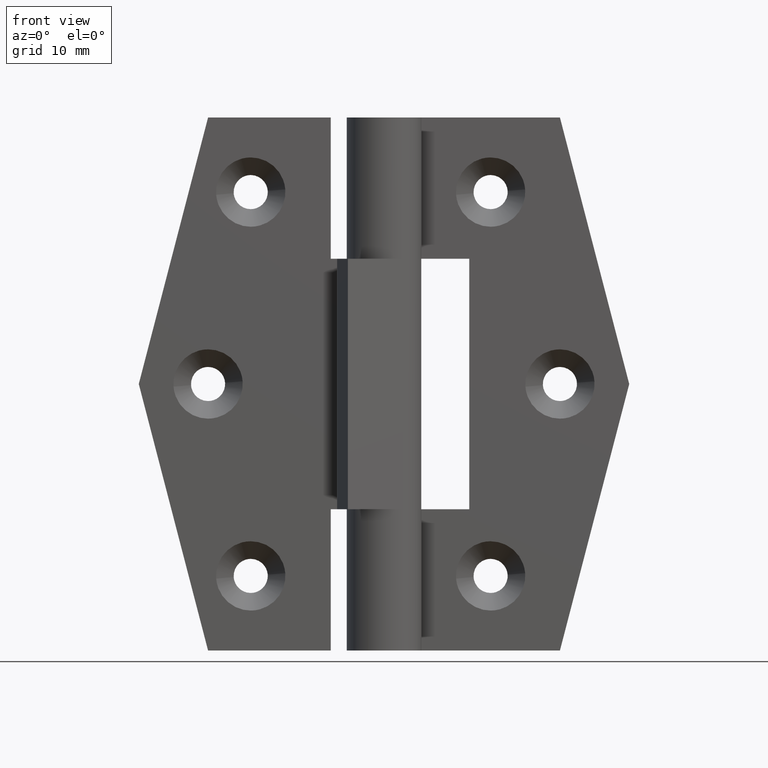
[diagram: clean part render]
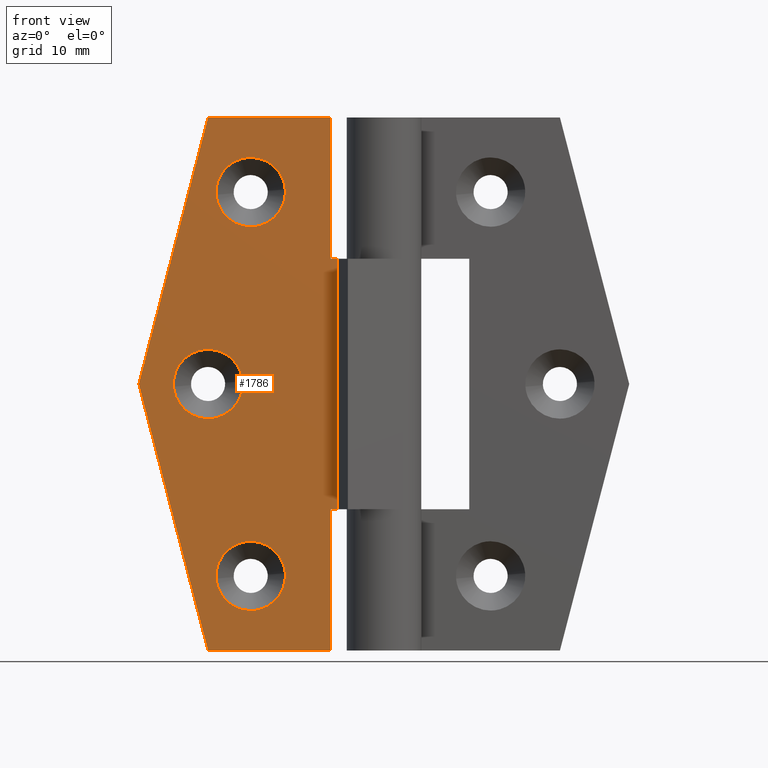
[diagram: same view with one face highlighted and labeled with its STEP entity id]
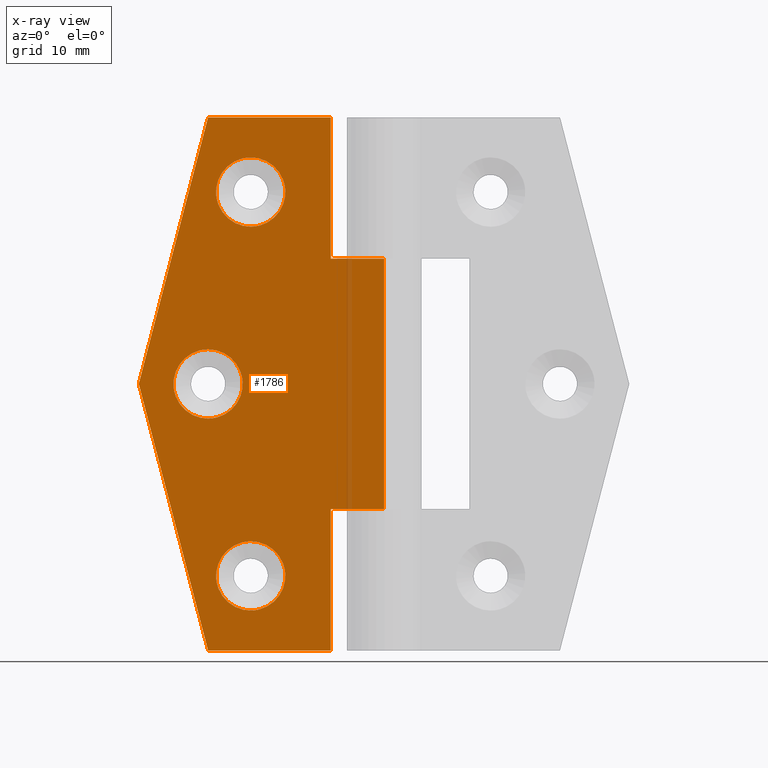
[diagram: x-ray of the same camera — body ghosted, the highlighted face saturated]
A machine part, front view. The second image highlights one B-rep face of the part: STEP entity #1786.
The next image is the same camera in x-ray: the body ghosted, the highlighted face saturated — about 2% of this face is hidden behind the body in this view.
In plain terms, the highlighted face is a freeform B-spline surface patch.
Its self-contained STEP definition (entity closure, byte-faithful):
#515=CARTESIAN_POINT('',(-13.260018665359871,1.499999999981075,25.254992061261849));
#516=VERTEX_POINT('',#515);
#522=CARTESIAN_POINT('',(-16.500000000000000,1.500000000000000,28.250000000000000));
#523=VERTEX_POINT('',#522);
#524=CARTESIAN_POINT('',(-16.500000000000000,1.500000000000000,28.250000000000000));
#525=CARTESIAN_POINT('',(-13.495730902380316,1.500000000000001,28.250000000000004));
#526=CARTESIAN_POINT('',(-13.260018665359867,1.499999999981075,25.254992061261849));
#534=(BOUNDED_CURVE()B_SPLINE_CURVE(2,(#524,#525,#526),.UNSPECIFIED.,.F.,.U.)B_SPLINE_CURVE_WITH_KNOTS((3,3),(0.0,0.236331300617437),.UNSPECIFIED.)CURVE()GEOMETRIC_REPRESENTATION_ITEM()RATIONAL_B_SPLINE_CURVE((1.0,0.723120658623156,0.969723356139824))REPRESENTATION_ITEM(''));
#535=EDGE_CURVE('',#523,#516,#534,.T.);
#537=CARTESIAN_POINT('',(-19.739981334640131,1.499999999981074,24.745007938738159));
#538=VERTEX_POINT('',#537);
#539=CARTESIAN_POINT('',(-19.739981334640134,1.499999999981074,24.745007938738151));
#540=CARTESIAN_POINT('',(-19.750000000000000,1.500000000000000,24.872307152079536));
#541=CARTESIAN_POINT('',(-19.750000000000000,1.500000000000000,25.0));
#542=CARTESIAN_POINT('',(-19.749999999999996,1.500000000000000,28.250000000000004));
#543=CARTESIAN_POINT('',(-16.500000000000000,1.500000000000000,28.250000000000000));
#551=(BOUNDED_CURVE()B_SPLINE_CURVE(2,(#539,#540,#541,#542,#543),.UNSPECIFIED.,.F.,.U.)B_SPLINE_CURVE_WITH_KNOTS((3,2,3),(0.736331300617438,0.750000000000000,1.0),.UNSPECIFIED.)CURVE()GEOMETRIC_REPRESENTATION_ITEM()RATIONAL_B_SPLINE_CURVE((0.969723356139824,0.983986122563391,1.0,0.707106781186547,1.0))REPRESENTATION_ITEM(''));
#552=EDGE_CURVE('',#538,#523,#551,.T.);
#589=CARTESIAN_POINT('',(-16.500000000000000,1.500000000000000,21.750000000000000));
#590=VERTEX_POINT('',#589);
#591=CARTESIAN_POINT('',(-16.500000000000000,1.500000000000000,21.750000000000000));
#592=CARTESIAN_POINT('',(-19.504269097619712,1.500000000000000,21.750000000000007));
#593=CARTESIAN_POINT('',(-19.739981334640131,1.499999999981074,24.745007938738155));
#601=(BOUNDED_CURVE()B_SPLINE_CURVE(2,(#591,#592,#593),.UNSPECIFIED.,.F.,.U.)B_SPLINE_CURVE_WITH_KNOTS((3,3),(0.500000000000000,0.736331300617438),.UNSPECIFIED.)CURVE()GEOMETRIC_REPRESENTATION_ITEM()RATIONAL_B_SPLINE_CURVE((1.0,0.723120658623155,0.969723356139826))REPRESENTATION_ITEM(''));
#602=EDGE_CURVE('',#590,#538,#601,.T.);
#604=CARTESIAN_POINT('',(-13.260018665359876,1.499999999981075,25.254992061261845));
#605=CARTESIAN_POINT('',(-13.250000000000007,1.500000000000000,25.127692847920457));
#606=CARTESIAN_POINT('',(-13.250000000000000,1.500000000000000,25.0));
#607=CARTESIAN_POINT('',(-13.250000000000004,1.500000000000000,21.750000000000004));
#608=CARTESIAN_POINT('',(-16.500000000000000,1.500000000000000,21.750000000000000));
#616=(BOUNDED_CURVE()B_SPLINE_CURVE(2,(#604,#605,#606,#607,#608),.UNSPECIFIED.,.F.,.U.)B_SPLINE_CURVE_WITH_KNOTS((3,2,3),(0.236331300617437,0.250000000000000,0.500000000000000),.UNSPECIFIED.)CURVE()GEOMETRIC_REPRESENTATION_ITEM()RATIONAL_B_SPLINE_CURVE((0.969723356139824,0.983986122563391,1.0,0.707106781186547,1.0))REPRESENTATION_ITEM(''));
#617=EDGE_CURVE('',#516,#590,#616,.T.);
#843=CARTESIAN_POINT('',(-9.260018665359869,1.499999999981075,43.254992061261852));
#844=VERTEX_POINT('',#843);
#850=CARTESIAN_POINT('',(-12.500000000000000,1.500000000000000,46.250000000000000));
#851=VERTEX_POINT('',#850);
#852=CARTESIAN_POINT('',(-12.500000000000000,1.500000000000000,46.250000000000000));
#853=CARTESIAN_POINT('',(-9.495730902380309,1.500000000000000,46.249999999999993));
#854=CARTESIAN_POINT('',(-9.260018665359869,1.499999999981075,43.254992061261845));
#862=(BOUNDED_CURVE()B_SPLINE_CURVE(2,(#852,#853,#854),.UNSPECIFIED.,.F.,.U.)B_SPLINE_CURVE_WITH_KNOTS((3,3),(0.0,0.236331300617438),.UNSPECIFIED.)CURVE()GEOMETRIC_REPRESENTATION_ITEM()RATIONAL_B_SPLINE_CURVE((1.0,0.723120658623156,0.969723356139825))REPRESENTATION_ITEM(''));
#863=EDGE_CURVE('',#851,#844,#862,.T.);
#865=CARTESIAN_POINT('',(-15.739981334640129,1.499999999981075,42.745007938738162));
#866=VERTEX_POINT('',#865);
#867=CARTESIAN_POINT('',(-15.739981334640126,1.499999999981075,42.745007938738148));
#868=CARTESIAN_POINT('',(-15.750000000000004,1.500000000000000,42.872307152079543));
#869=CARTESIAN_POINT('',(-15.750000000000000,1.500000000000000,43.0));
#870=CARTESIAN_POINT('',(-15.749999999999995,1.500000000000000,46.249999999999993));
#871=CARTESIAN_POINT('',(-12.500000000000000,1.500000000000000,46.250000000000000));
#879=(BOUNDED_CURVE()B_SPLINE_CURVE(2,(#867,#868,#869,#870,#871),.UNSPECIFIED.,.F.,.U.)B_SPLINE_CURVE_WITH_KNOTS((3,2,3),(0.736331300617438,0.750000000000000,1.0),.UNSPECIFIED.)CURVE()GEOMETRIC_REPRESENTATION_ITEM()RATIONAL_B_SPLINE_CURVE((0.969723356139825,0.983986122563392,1.0,0.707106781186547,1.0))REPRESENTATION_ITEM(''));
#880=EDGE_CURVE('',#866,#851,#879,.T.);
#917=CARTESIAN_POINT('',(-12.500000000000000,1.500000000000000,39.749999999999993));
#918=VERTEX_POINT('',#917);
#919=CARTESIAN_POINT('',(-12.500000000000000,1.500000000000000,39.749999999999993));
#920=CARTESIAN_POINT('',(-15.504269097619702,1.500000000000000,39.750000000000000));
#921=CARTESIAN_POINT('',(-15.739981334640126,1.499999999981075,42.745007938738155));
#929=(BOUNDED_CURVE()B_SPLINE_CURVE(2,(#919,#920,#921),.UNSPECIFIED.,.F.,.U.)B_SPLINE_CURVE_WITH_KNOTS((3,3),(0.500000000000000,0.736331300617438),.UNSPECIFIED.)CURVE()GEOMETRIC_REPRESENTATION_ITEM()RATIONAL_B_SPLINE_CURVE((1.0,0.723120658623155,0.969723356139826))REPRESENTATION_ITEM(''));
#930=EDGE_CURVE('',#918,#866,#929,.T.);
#932=CARTESIAN_POINT('',(-9.260018665359869,1.499999999981076,43.254992061261845));
#933=CARTESIAN_POINT('',(-9.250000000000002,1.500000000000000,43.127692847920464));
#934=CARTESIAN_POINT('',(-9.250000000000002,1.500000000000000,43.0));
#935=CARTESIAN_POINT('',(-9.250000000000002,1.500000000000000,39.750000000000000));
#936=CARTESIAN_POINT('',(-12.500000000000000,1.500000000000000,39.749999999999993));
#944=(BOUNDED_CURVE()B_SPLINE_CURVE(2,(#932,#933,#934,#935,#936),.UNSPECIFIED.,.F.,.U.)B_SPLINE_CURVE_WITH_KNOTS((3,2,3),(0.236331300617438,0.250000000000000,0.500000000000000),.UNSPECIFIED.)CURVE()GEOMETRIC_REPRESENTATION_ITEM()RATIONAL_B_SPLINE_CURVE((0.969723356139824,0.983986122563391,1.0,0.707106781186547,1.0))REPRESENTATION_ITEM(''));
#945=EDGE_CURVE('',#844,#918,#944,.T.);
#1171=CARTESIAN_POINT('',(-9.260018665359873,1.499999999981076,7.254992061261847));
#1172=VERTEX_POINT('',#1171);
#1178=CARTESIAN_POINT('',(-12.500000000000000,1.500000000000000,10.250000000000000));
#1179=VERTEX_POINT('',#1178);
#1180=CARTESIAN_POINT('',(-12.500000000000000,1.500000000000000,10.250000000000000));
#1181=CARTESIAN_POINT('',(-9.495730902380309,1.500000000000000,10.250000000000000));
#1182=CARTESIAN_POINT('',(-9.260018665359873,1.499999999981076,7.254992061261847));
#1190=(BOUNDED_CURVE()B_SPLINE_CURVE(2,(#1180,#1181,#1182),.UNSPECIFIED.,.F.,.U.)B_SPLINE_CURVE_WITH_KNOTS((3,3),(0.0,0.236331300617438),.UNSPECIFIED.)CURVE()GEOMETRIC_REPRESENTATION_ITEM()RATIONAL_B_SPLINE_CURVE((1.0,0.723120658623156,0.969723356139825))REPRESENTATION_ITEM(''));
#1191=EDGE_CURVE('',#1179,#1172,#1190,.T.);
#1193=CARTESIAN_POINT('',(-15.739981334640129,1.499999999981075,6.745007938738153));
#1194=VERTEX_POINT('',#1193);
#1195=CARTESIAN_POINT('',(-15.739981334640134,1.499999999981075,6.745007938738154));
#1196=CARTESIAN_POINT('',(-15.749999999999998,1.500000000000000,6.872307152079536));
#1197=CARTESIAN_POINT('',(-15.750000000000000,1.500000000000000,7.0));
#1198=CARTESIAN_POINT('',(-15.749999999999995,1.500000000000000,10.250000000000000));
#1199=CARTESIAN_POINT('',(-12.500000000000000,1.500000000000000,10.250000000000000));
#1207=(BOUNDED_CURVE()B_SPLINE_CURVE(2,(#1195,#1196,#1197,#1198,#1199),.UNSPECIFIED.,.F.,.U.)B_SPLINE_CURVE_WITH_KNOTS((3,2,3),(0.736331300617437,0.750000000000000,1.0),.UNSPECIFIED.)CURVE()GEOMETRIC_REPRESENTATION_ITEM()RATIONAL_B_SPLINE_CURVE((0.969723356139824,0.983986122563391,1.0,0.707106781186547,1.0))REPRESENTATION_ITEM(''));
#1208=EDGE_CURVE('',#1194,#1179,#1207,.T.);
#1245=CARTESIAN_POINT('',(-12.500000000000000,1.500000000000000,3.750000000000000));
#1246=VERTEX_POINT('',#1245);
#1247=CARTESIAN_POINT('',(-12.500000000000000,1.500000000000000,3.750000000000000));
#1248=CARTESIAN_POINT('',(-15.504269097619702,1.500000000000000,3.750000000000001));
#1249=CARTESIAN_POINT('',(-15.739981334640126,1.499999999981075,6.745007938738153));
#1257=(BOUNDED_CURVE()B_SPLINE_CURVE(2,(#1247,#1248,#1249),.UNSPECIFIED.,.F.,.U.)B_SPLINE_CURVE_WITH_KNOTS((3,3),(0.500000000000000,0.736331300617438),.UNSPECIFIED.)CURVE()GEOMETRIC_REPRESENTATION_ITEM()RATIONAL_B_SPLINE_CURVE((1.0,0.723120658623155,0.969723356139826))REPRESENTATION_ITEM(''));
#1258=EDGE_CURVE('',#1246,#1194,#1257,.T.);
#1260=CARTESIAN_POINT('',(-9.260018665359873,1.499999999981077,7.254992061261848));
#1261=CARTESIAN_POINT('',(-9.250000000000002,1.500000000000000,7.127692847920463));
#1262=CARTESIAN_POINT('',(-9.250000000000002,1.500000000000000,7.0));
#1263=CARTESIAN_POINT('',(-9.250000000000002,1.500000000000000,3.750000000000002));
#1264=CARTESIAN_POINT('',(-12.500000000000000,1.500000000000000,3.750000000000000));
#1272=(BOUNDED_CURVE()B_SPLINE_CURVE(2,(#1260,#1261,#1262,#1263,#1264),.UNSPECIFIED.,.F.,.U.)B_SPLINE_CURVE_WITH_KNOTS((3,2,3),(0.236331300617438,0.250000000000000,0.500000000000000),.UNSPECIFIED.)CURVE()GEOMETRIC_REPRESENTATION_ITEM()RATIONAL_B_SPLINE_CURVE((0.969723356139824,0.983986122563391,1.0,0.707106781186547,1.0))REPRESENTATION_ITEM(''));
#1273=EDGE_CURVE('',#1172,#1246,#1272,.T.);
#1284=CARTESIAN_POINT('',(-5.0,1.500000000000000,13.250000000000000));
#1285=VERTEX_POINT('',#1284);
#1338=CARTESIAN_POINT('',(9.184548E-017,1.500000000000000,13.250000000000000));
#1339=VERTEX_POINT('',#1338);
#1355=CARTESIAN_POINT('',(9.184548E-017,1.500000000000000,13.250000000000000));
#1356=CARTESIAN_POINT('',(-5.0,1.500000000000000,13.250000000000000));
#1357=QUASI_UNIFORM_CURVE('',1,(#1355,#1356),.UNSPECIFIED.,.F.,.U.);
#1358=EDGE_CURVE('',#1339,#1285,#1357,.T.);
#1368=CARTESIAN_POINT('',(-5.0,1.500000000000000,36.750000000000000));
#1369=VERTEX_POINT('',#1368);
#1377=CARTESIAN_POINT('',(9.184548E-017,1.500000000000000,36.750000000000000));
#1378=VERTEX_POINT('',#1377);
#1379=CARTESIAN_POINT('',(9.184548E-017,1.500000000000000,36.750000000000000));
#1380=CARTESIAN_POINT('',(-5.0,1.500000000000000,36.750000000000000));
#1381=QUASI_UNIFORM_CURVE('',1,(#1379,#1380),.UNSPECIFIED.,.F.,.U.);
#1382=EDGE_CURVE('',#1378,#1369,#1381,.T.);
#1472=CARTESIAN_POINT('',(9.184548E-017,1.500000000000000,36.750000000000000));
#1473=CARTESIAN_POINT('',(9.184548E-017,1.500000000000000,13.250000000000000));
#1474=QUASI_UNIFORM_CURVE('',1,(#1472,#1473),.UNSPECIFIED.,.F.,.U.);
#1475=EDGE_CURVE('',#1378,#1339,#1474,.T.);
#1571=CARTESIAN_POINT('',(-16.499996099997649,1.499999999999946,50.0));
#1572=VERTEX_POINT('',#1571);
#1578=CARTESIAN_POINT('',(-5.0,1.499999999999946,50.0));
#1579=VERTEX_POINT('',#1578);
#1580=CARTESIAN_POINT('',(-5.0,1.499999999999946,50.0));
#1581=CARTESIAN_POINT('',(-16.499996099997649,1.499999999999946,50.0));
#1582=QUASI_UNIFORM_CURVE('',1,(#1580,#1581),.UNSPECIFIED.,.F.,.U.);
#1583=EDGE_CURVE('',#1579,#1572,#1582,.T.);
#1598=CARTESIAN_POINT('',(-5.0,1.500000000000000,36.750000000000000));
#1599=CARTESIAN_POINT('',(-5.0,1.499999999999946,50.0));
#1600=QUASI_UNIFORM_CURVE('',1,(#1598,#1599),.UNSPECIFIED.,.F.,.U.);
#1601=EDGE_CURVE('',#1369,#1579,#1600,.T.);
#1627=CARTESIAN_POINT('',(-5.0,1.499999999999946,0.0));
#1628=VERTEX_POINT('',#1627);
#1634=CARTESIAN_POINT('',(-16.500000000000000,1.499999999999946,0.0));
#1635=VERTEX_POINT('',#1634);
#1636=CARTESIAN_POINT('',(-16.500000000000000,1.499999999999946,0.0));
#1637=CARTESIAN_POINT('',(-5.0,1.499999999999946,0.0));
#1638=QUASI_UNIFORM_CURVE('',1,(#1636,#1637),.UNSPECIFIED.,.F.,.U.);
#1639=EDGE_CURVE('',#1635,#1628,#1638,.T.);
#1662=CARTESIAN_POINT('',(-23.0,1.499999999999946,25.0));
#1663=VERTEX_POINT('',#1662);
#1664=CARTESIAN_POINT('',(-23.0,1.499999999999946,25.0));
#1665=CARTESIAN_POINT('',(-16.500000000000000,1.499999999999946,0.0));
#1666=QUASI_UNIFORM_CURVE('',1,(#1664,#1665),.UNSPECIFIED.,.F.,.U.);
#1667=EDGE_CURVE('',#1663,#1635,#1666,.T.);
#1688=CARTESIAN_POINT('',(-16.499996099997649,1.499999999999946,50.0));
#1689=CARTESIAN_POINT('',(-23.0,1.499999999999946,25.0));
#1690=QUASI_UNIFORM_CURVE('',1,(#1688,#1689),.UNSPECIFIED.,.F.,.U.);
#1691=EDGE_CURVE('',#1572,#1663,#1690,.T.);
#1703=CARTESIAN_POINT('',(-5.0,1.499999999999946,0.0));
#1704=CARTESIAN_POINT('',(-5.0,1.500000000000000,13.250000000000000));
#1705=QUASI_UNIFORM_CURVE('',1,(#1703,#1704),.UNSPECIFIED.,.F.,.U.);
#1706=EDGE_CURVE('',#1628,#1285,#1705,.T.);
#1752=CARTESIAN_POINT('',(-24.148849955421539,1.500000000000000,52.497499903090286));
#1753=CARTESIAN_POINT('',(1.148850572329611,1.500000000000000,52.497499903090286));
#1754=CARTESIAN_POINT('',(-24.148849955421539,1.500000000000000,-2.497501244194806));
#1755=CARTESIAN_POINT('',(1.148850572329611,1.500000000000000,-2.497501244194806));
#1756=B_SPLINE_SURFACE_WITH_KNOTS('',1,1,((#1752,#1754),(#1753,#1755)),.UNSPECIFIED.,.F.,.F.,.U.,(2,2),(2,2),(0.0,25.297700527751150),(0.0,54.995001147285102),.UNSPECIFIED.);
#1757=ORIENTED_EDGE('',*,*,#1691,.T.);
#1758=ORIENTED_EDGE('',*,*,#1667,.T.);
#1759=ORIENTED_EDGE('',*,*,#1639,.T.);
#1760=ORIENTED_EDGE('',*,*,#1706,.T.);
#1761=ORIENTED_EDGE('',*,*,#1358,.F.);
#1762=ORIENTED_EDGE('',*,*,#1475,.F.);
#1763=ORIENTED_EDGE('',*,*,#1382,.T.);
#1764=ORIENTED_EDGE('',*,*,#1601,.T.);
#1765=ORIENTED_EDGE('',*,*,#1583,.T.);
#1766=EDGE_LOOP('',(#1757,#1758,#1759,#1760,#1761,#1762,#1763,#1764,#1765));
#1767=FACE_OUTER_BOUND('',#1766,.T.);
#1768=ORIENTED_EDGE('',*,*,#1258,.T.);
#1769=ORIENTED_EDGE('',*,*,#1208,.T.);
#1770=ORIENTED_EDGE('',*,*,#1191,.T.);
#1771=ORIENTED_EDGE('',*,*,#1273,.T.);
#1772=EDGE_LOOP('',(#1768,#1769,#1770,#1771));
#1773=FACE_BOUND('',#1772,.T.);
#1774=ORIENTED_EDGE('',*,*,#930,.T.);
#1775=ORIENTED_EDGE('',*,*,#880,.T.);
#1776=ORIENTED_EDGE('',*,*,#863,.T.);
#1777=ORIENTED_EDGE('',*,*,#945,.T.);
#1778=EDGE_LOOP('',(#1774,#1775,#1776,#1777));
#1779=FACE_BOUND('',#1778,.T.);
#1780=ORIENTED_EDGE('',*,*,#602,.T.);
#1781=ORIENTED_EDGE('',*,*,#552,.T.);
#1782=ORIENTED_EDGE('',*,*,#535,.T.);
#1783=ORIENTED_EDGE('',*,*,#617,.T.);
#1784=EDGE_LOOP('',(#1780,#1781,#1782,#1783));
#1785=FACE_BOUND('',#1784,.T.);
#1786=ADVANCED_FACE('',(#1767,#1773,#1779,#1785),#1756,.F.);